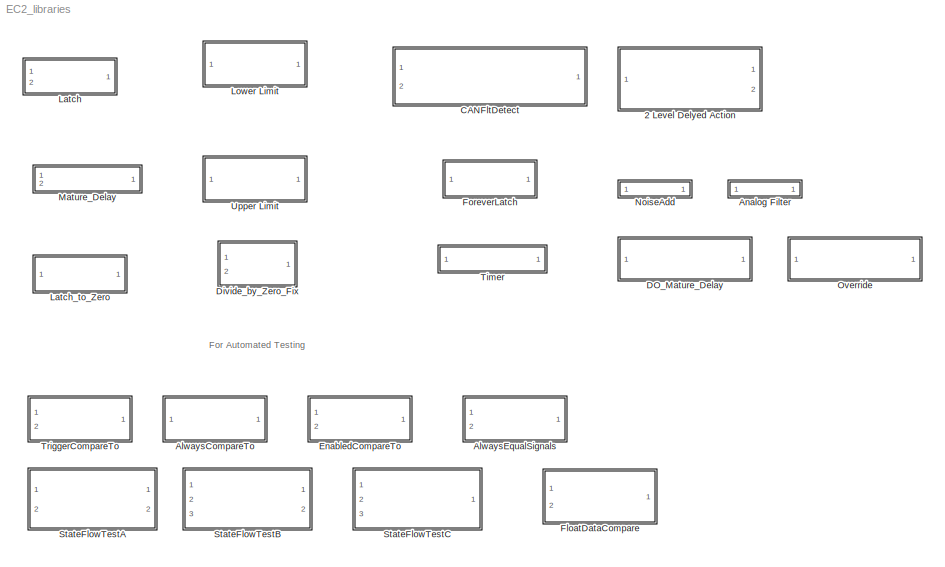
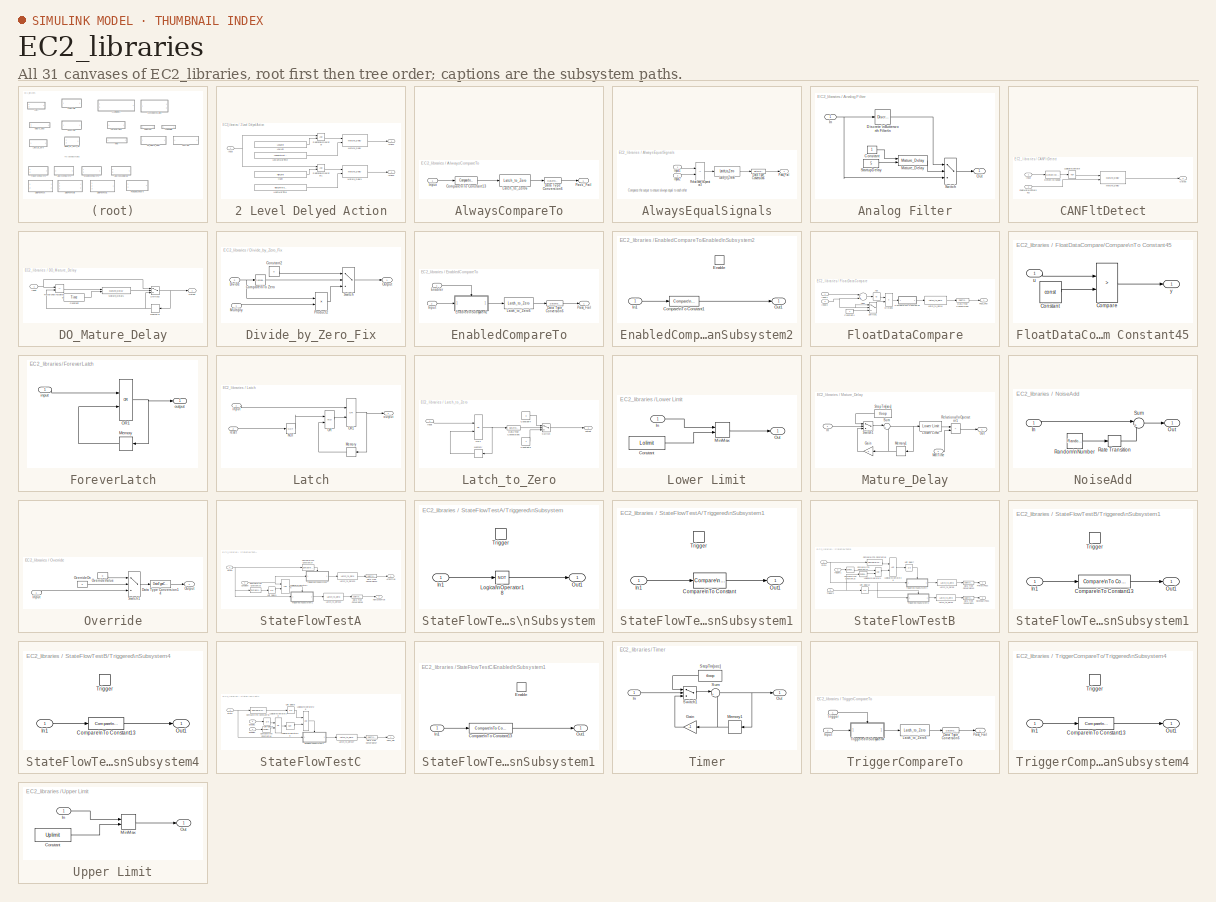
[diagram: thumbnail index - all 31 canvases of the model, root first then tree order]
MODEL EC2_libraries
KIND library
CONFIG PostLoadFcn = , if any(exist('dsrtsu_mdlpostloadfcn', 'file') == [2, 3, 6]), try dsrtsu_mdlpostloadfcn('Execute', bdroot); catch fprintf('Error in PostLoadFcn (dsrtsu_mdlpostloadfcn) for model \"%s\":\\n %s\\n', bdroot, lasterr); end, end, \n
BLOCK [SubSystem] 2 Level Delyed Action
  Ports = [1, 2]
  RequestExecContextInheritance = off
  SID = 229
  Variant = off
BLOCK [Outport] 2 Level Delyed Action/Action1
  IconDisplay = Port number
  SID = 239
BLOCK [Outport] 2 Level Delyed Action/Action2
  IconDisplay = Port number
  Port = 2
  SID = 240
BLOCK [Constant] 2 Level Delyed Action/HiLim
  SID = 233
  Value = HighLimit
BLOCK [Constant] 2 Level Delyed Action/HiLimMatTime
  SID = 232
  Value = HighLimitMatureTime
BLOCK [Inport] 2 Level Delyed Action/Input
  IconDisplay = Port number
  SID = 230
BLOCK [Constant] 2 Level Delyed Action/LowLim
  SID = 231
  Value = LowLimit
BLOCK [Constant] 2 Level Delyed Action/LowLimMatTime
  SID = 234
  Value = LowLimitMatureTime
BLOCK [Reference] 2 Level Delyed Action/Mature_Delay  REF=EC2_libraries/Mature_Delay
  Ports = [2, 1]
  SID = 235
  SourceBlock = EC2_libraries/Mature_Delay
  SourceType = SubSystem
BLOCK [Reference] 2 Level Delyed Action/Mature_Delay1  REF=EC2_libraries/Mature_Delay
  Ports = [2, 1]
  SID = 236
  SourceBlock = EC2_libraries/Mature_Delay
  SourceType = SubSystem
BLOCK [RelationalOperator] 2 Level Delyed Action/Relational\nOperator
  InputSameDT = off
  OutDataTypeStr = boolean
  Ports = [2, 1]
  SID = 237
BLOCK [RelationalOperator] 2 Level Delyed Action/Relational\nOperator1
  InputSameDT = off
  OutDataTypeStr = boolean
  Ports = [2, 1]
  SID = 238
BLOCK [SubSystem] AlwaysCompareTo
  Ports = [1, 1]
  RequestExecContextInheritance = off
  SID = 182
  TreatAsAtomicUnit = on
  Variant = off
BLOCK [Reference] AlwaysCompareTo/Compare\nTo Constant13  REF=simulink/Logic and Bit\nOperations/Compare\nTo Constant
  OutDataTypeStr = boolean
  Ports = [1, 1]
  SID = 198
  SourceBlock = simulink/Logic and Bit\nOperations/Compare\nTo Constant
  SourceProductBaseCode = SL
  SourceProductName = Simulink
  SourceType = Compare To Constant
  ZeroCross = on
  const = exp_val
  relop = ~=
BLOCK [DataTypeConversion] AlwaysCompareTo/Data Type Conversion6
  RndMeth = Floor
  SID = 185
  SaturateOnIntegerOverflow = off
BLOCK [Inport] AlwaysCompareTo/Input
  IconDisplay = Port number
  SID = 184
BLOCK [Reference] AlwaysCompareTo/Latch_to_Zero6  REF=EC2_libraries/Latch_to_Zero
  Ports = [1, 1]
  SID = 186
  SourceBlock = EC2_libraries/Latch_to_Zero
  SourceType = SubSystem
BLOCK [Outport] AlwaysCompareTo/Pass_Fail
  IconDisplay = Port number
  SID = 192
BLOCK [SubSystem] AlwaysEqualSignals
  Ports = [2, 1]
  RequestExecContextInheritance = off
  SID = 170
  TreatAsAtomicUnit = on
  Variant = off
BLOCK [DataTypeConversion] AlwaysEqualSignals/Data Type Conversion6
  RndMeth = Floor
  SID = 173
  SaturateOnIntegerOverflow = off
BLOCK [Inport] AlwaysEqualSignals/Input1
  IconDisplay = Port number
  SID = 171
BLOCK [Inport] AlwaysEqualSignals/Input2
  IconDisplay = Port number
  Port = 2
  SID = 172
BLOCK [Reference] AlwaysEqualSignals/Latch_to_Zero6  REF=EC2_libraries/Latch_to_Zero
  Ports = [1, 1]
  SID = 174
  SourceBlock = EC2_libraries/Latch_to_Zero
  SourceType = SubSystem
BLOCK [Outport] AlwaysEqualSignals/Pass_Fail
  IconDisplay = Port number
  SID = 180
BLOCK [RelationalOperator] AlwaysEqualSignals/Relational\nOperator3
  InputSameDT = off
  Operator = ~=
  OutDataTypeStr = boolean
  Ports = [2, 1]
  SID = 181
BLOCK [SubSystem] Analog Filter
  Ports = [1, 1]
  RequestExecContextInheritance = off
  SID = 425
  Variant = off
BLOCK [Constant] Analog Filter/Constant
  SID = 433
BLOCK [Reference] Analog Filter/Discrete \nButterworth Filter\n  REF=powerlib_extras/Discrete \nControl Blocks/Discrete \nButterworth Filter\n
  Bo = 80
  FilterType = Lowpass
  Fo = 2
  FunctionWithSeparateData = off
  Initialize = on
  N = 1
  PlotResponse = off
  Ports = [1, 1]
  RTWMemSecDataConstants = Inherit from model
  RTWMemSecDataInternal = Inherit from model
  RTWMemSecDataParameters = Inherit from model
  RTWMemSecFuncExecute = Inherit from model
  RTWMemSecFuncInitTerm = Inherit from model
  SID = 430
  ShowPortLabels = FromPortIcon
  SourceBlock = powerlib_extras/Discrete \nControl Blocks/Discrete \nButterworth Filter\n
  SourceType = Discrete Butterworth Filter
  SystemSampleTime = -1
  Ts = tloop
  Vac_Init = [1.2 60 60]
  Vdc_Init = -0.6
  param1 = [1 500 0.1]
BLOCK [Inport] Analog Filter/In
  IconDisplay = Port number
  SID = 426
BLOCK [Reference] Analog Filter/Mature_Delay  REF=EC2_libraries/Mature_Delay
  Ports = [2, 1]
  SID = 431
  SourceBlock = EC2_libraries/Mature_Delay
  SourceType = SubSystem
BLOCK [Outport] Analog Filter/Out
  IconDisplay = Port number
  SID = 429
BLOCK [Constant] Analog Filter/StartupDelay
  SID = 432
  Value = 5
BLOCK [Switch] Analog Filter/Switch
  InputSameDT = off
  SID = 434
  SaturateOnIntegerOverflow = off
  Threshold = 1
BLOCK [SubSystem] CANFltDetect
  Ports = [2, 1]
  RequestExecContextInheritance = off
  SID = 42
  Variant = off
BLOCK [Reference] CANFltDetect/Detect\nChange  REF=simulink/Logic and Bit\nOperations/Detect\nChange
  InputProcessing = Inherited
  OutDataTypeStr = uint8
  Ports = [1, 1]
  SID = 54
  SourceBlock = simulink/Logic and Bit\nOperations/Detect\nChange
  SourceProductBaseCode = SL
  SourceProductName = Simulink
  SourceType = Detect Change
  vinit = 1
BLOCK [Inport] CANFltDetect/FaultMatureTime[sec]
  IconDisplay = Port number
  Port = 2
  SID = 44
BLOCK [Inport] CANFltDetect/Input
  IconDisplay = Port number
  SID = 43
BLOCK [Logic] CANFltDetect/Logical\nOperator
  AllPortsSameDT = off
  Inputs = 1
  Operator = NOT
  OutDataTypeStr = boolean
  Ports = [1, 1]
  SID = 55
BLOCK [Reference] CANFltDetect/Mature_Delay  REF=EC2_libraries/Mature_Delay
  Ports = [2, 1]
  SID = 56
  SourceBlock = EC2_libraries/Mature_Delay
  SourceType = SubSystem
BLOCK [Outport] CANFltDetect/Output
  IconDisplay = Port number
  SID = 53
BLOCK [SubSystem] DO_Mature_Delay
  Ports = [1, 1]
  RequestExecContextInheritance = off
  SID = 416
  Variant = off
BLOCK [Constant] DO_Mature_Delay/Constant
  SID = 424
  Value = Time
BLOCK [Inport] DO_Mature_Delay/Input
  IconDisplay = Port number
  SID = 417
BLOCK [Reference] DO_Mature_Delay/Mature_Delay1  REF=EC2_libraries/Mature_Delay
  Ports = [2, 1]
  SID = 419
  SourceBlock = EC2_libraries/Mature_Delay
  SourceType = SubSystem
BLOCK [Memory] DO_Mature_Delay/Memory3
  SID = 420
BLOCK [Outport] DO_Mature_Delay/Output
  IconDisplay = Port number
  SID = 423
BLOCK [RelationalOperator] DO_Mature_Delay/Relational\nOperator
  InputSameDT = off
  Operator = ~=
  OutDataTypeStr = boolean
  Ports = [2, 1]
  SID = 421
BLOCK [Switch] DO_Mature_Delay/Switch2
  InputSameDT = off
  SID = 422
  SaturateOnIntegerOverflow = off
  Threshold = 1
BLOCK [SubSystem] Divide_by_Zero_Fix
  Ports = [2, 1]
  RequestExecContextInheritance = off
  SID = 71
  Variant = off
BLOCK [Reference] Divide_by_Zero_Fix/Compare\nTo Zero  REF=simulink/Logic and Bit\nOperations/Compare\nTo Zero
  OutDataTypeStr = boolean
  Ports = [1, 1]
  SID = 74
  SourceBlock = simulink/Logic and Bit\nOperations/Compare\nTo Zero
  SourceProductBaseCode = SL
  SourceProductName = Simulink
  SourceType = Compare To Zero
  ZeroCross = on
  relop = ==
BLOCK [Constant] Divide_by_Zero_Fix/Constant2
  SID = 75
  Value = 0
BLOCK [Inport] Divide_by_Zero_Fix/Divide
  IconDisplay = Port number
  Port = 2
  SID = 73
BLOCK [Inport] Divide_by_Zero_Fix/Multiply
  IconDisplay = Port number
  SID = 72
BLOCK [Outport] Divide_by_Zero_Fix/Output
  IconDisplay = Port number
  SID = 78
BLOCK [Product] Divide_by_Zero_Fix/Product2
  Inputs = /*
  Ports = [2, 1]
  RndMeth = Floor
  SID = 76
BLOCK [Switch] Divide_by_Zero_Fix/Switch
  InputSameDT = off
  SID = 77
  SaturateOnIntegerOverflow = off
  Threshold = 1
BLOCK [SubSystem] EnabledCompareTo
  Ports = [2, 1]
  RequestExecContextInheritance = off
  SID = 210
  TreatAsAtomicUnit = on
  Variant = off
BLOCK [DataTypeConversion] EnabledCompareTo/Data Type Conversion6
  RndMeth = Floor
  SID = 213
  SaturateOnIntegerOverflow = off
BLOCK [SubSystem] EnabledCompareTo/Enabled\nSubsystem2
  Ports = [1, 1, 1]
  RequestExecContextInheritance = off
  SID = 221
  TreatAsAtomicUnit = on
  Variant = off
BLOCK [Reference] EnabledCompareTo/Enabled\nSubsystem2/Compare\nTo Constant1  REF=simulink/Logic and Bit\nOperations/Compare\nTo Constant
  OutDataTypeStr = boolean
  Ports = [1, 1]
  SID = 228
  SourceBlock = simulink/Logic and Bit\nOperations/Compare\nTo Constant
  SourceProductBaseCode = SL
  SourceProductName = Simulink
  SourceType = Compare To Constant
  ZeroCross = on
  const = exp_val
  relop = ~=
BLOCK [EnablePort] EnabledCompareTo/Enabled\nSubsystem2/Enable
  Ports = []
  SID = 223
BLOCK [Inport] EnabledCompareTo/Enabled\nSubsystem2/In1
  IconDisplay = Port number
  SID = 222
BLOCK [Outport] EnabledCompareTo/Enabled\nSubsystem2/Out1
  IconDisplay = Port number
  SID = 225
BLOCK [Inport] EnabledCompareTo/Enabler
  IconDisplay = Port number
  SID = 211
BLOCK [Inport] EnabledCompareTo/Input
  IconDisplay = Port number
  Port = 2
  SID = 212
BLOCK [Reference] EnabledCompareTo/Latch_to_Zero6  REF=EC2_libraries/Latch_to_Zero
  Ports = [1, 1]
  SID = 214
  SourceBlock = EC2_libraries/Latch_to_Zero
  SourceType = SubSystem
BLOCK [Outport] EnabledCompareTo/Pass_Fail
  IconDisplay = Port number
  SID = 220
BLOCK [SubSystem] FloatDataCompare
  Ports = [2, 1]
  RequestExecContextInheritance = off
  SID = 399
  Variant = off
BLOCK [Abs] FloatDataCompare/Abs
  SID = 402
  SaturateOnIntegerOverflow = off
BLOCK [Sum] FloatDataCompare/Add1
  InputSameDT = off
  Inputs = -+
  OutDataTypeStr = Inherit: Inherit via internal rule
  Ports = [2, 1]
  SID = 403
  SaturateOnIntegerOverflow = off
BLOCK [SubSystem] FloatDataCompare/Compare\nTo Constant45
  Ports = [1, 1]
  RequestExecContextInheritance = off
  SID = 404
  Variant = off
BLOCK [RelationalOperator] FloatDataCompare/Compare\nTo Constant45/Compare
  Operator = >
  OutDataTypeStr = boolean
  Ports = [2, 1]
  SID = 404:24
BLOCK [Constant] FloatDataCompare/Compare\nTo Constant45/Constant
  DisableCoverage = on
  OutDataTypeStr = Inherit: Inherit via back propagation
  SID = 404:25
  Value = const
BLOCK [Inport] FloatDataCompare/Compare\nTo Constant45/u
  IconDisplay = Port number
  SID = 404:23
BLOCK [Outport] FloatDataCompare/Compare\nTo Constant45/y
  IconDisplay = Port number
  SID = 404:26
BLOCK [Constant] FloatDataCompare/Constant4
  SID = 405
BLOCK [DataTypeConversion] FloatDataCompare/Data Type Conversion5
  RndMeth = Floor
  SID = 406
  SaturateOnIntegerOverflow = off
BLOCK [Product] FloatDataCompare/Divide3
  InputSameDT = off
  Inputs = */
  OutDataTypeStr = Inherit: Inherit via internal rule
  Ports = [2, 1]
  RndMeth = Floor
  SID = 407
  SaturateOnIntegerOverflow = off
BLOCK [Inport] FloatDataCompare/Input1
  IconDisplay = Port number
  SID = 400
BLOCK [Inport] FloatDataCompare/Input2
  IconDisplay = Port number
  Port = 2
  SID = 401
BLOCK [Reference] FloatDataCompare/Latch_to_Zero4  REF=EC2_libraries/Latch_to_Zero
  Ports = [1, 1]
  SID = 408
  SourceBlock = EC2_libraries/Latch_to_Zero
  SourceType = SubSystem
BLOCK [Outport] FloatDataCompare/Pass_Fail
  IconDisplay = Port number
  SID = 410
BLOCK [Switch] FloatDataCompare/Switch1
  Criteria = u2 > Threshold
  InputSameDT = off
  SID = 409
  SaturateOnIntegerOverflow = off
BLOCK [SubSystem] ForeverLatch
  Ports = [1, 1]
  RequestExecContextInheritance = off
  SID = 57
  Variant = off
BLOCK [Memory] ForeverLatch/Memory
  SID = 59
BLOCK [Logic] ForeverLatch/OR1
  Operator = OR
  OutDataTypeStr = boolean
  Ports = [2, 1]
  SID = 60
BLOCK [Inport] ForeverLatch/input
  IconDisplay = Port number
  OutDataTypeStr = boolean
  SID = 58
BLOCK [Outport] ForeverLatch/output
  IconDisplay = Port number
  OutDataTypeStr = boolean
  SID = 61
BLOCK [SubSystem] Latch
  Ports = [2, 1]
  RequestExecContextInheritance = off
  SID = 34
  Variant = off
BLOCK [Memory] Latch/Memory
  SID = 37
BLOCK [Logic] Latch/NOT
  Operator = NOT
  OutDataTypeStr = boolean
  Ports = [1, 1]
  SID = 38
BLOCK [Logic] Latch/OR
  OutDataTypeStr = boolean
  Ports = [2, 1]
  SID = 39
BLOCK [Logic] Latch/OR1
  Operator = OR
  OutDataTypeStr = boolean
  Ports = [2, 1]
  SID = 40
BLOCK [Inport] Latch/input
  IconDisplay = Port number
  OutDataTypeStr = boolean
  SID = 35
BLOCK [Outport] Latch/output
  IconDisplay = Port number
  OutDataTypeStr = boolean
  SID = 41
BLOCK [Inport] Latch/reset
  IconDisplay = Port number
  OutDataTypeStr = boolean
  Port = 2
  SID = 36
BLOCK [SubSystem] Latch_to_Zero
  Ports = [1, 1]
  RequestExecContextInheritance = off
  SID = 62
  Variant = off
BLOCK [Constant] Latch_to_Zero/Constant3
  SID = 64
BLOCK [Constant] Latch_to_Zero/Constant4
  SID = 65
  Value = 0
BLOCK [DataTypeConversion] Latch_to_Zero/Data Type Conversion6
  RndMeth = Floor
  SID = 70
  SaturateOnIntegerOverflow = off
BLOCK [Memory] Latch_to_Zero/Memory
  SID = 66
BLOCK [Logic] Latch_to_Zero/OR1
  Operator = OR
  OutDataTypeStr = boolean
  Ports = [2, 1]
  SID = 67
BLOCK [Switch] Latch_to_Zero/Switch
  Criteria = u2 > Threshold
  InputSameDT = off
  SID = 68
  SaturateOnIntegerOverflow = off
BLOCK [Inport] Latch_to_Zero/input
  IconDisplay = Port number
  OutDataTypeStr = boolean
  SID = 63
BLOCK [Outport] Latch_to_Zero/output
  IconDisplay = Port number
  SID = 69
BLOCK [SubSystem] Lower Limit
  Ports = [1, 1]
  RequestExecContextInheritance = off
  SID = 1
  Variant = off
BLOCK [Constant] Lower Limit/Constant
  SID = 3
  Value = Lolimit
BLOCK [Inport] Lower Limit/In
  IconDisplay = Port number
  SID = 2
BLOCK [MinMax] Lower Limit/MinMax
  Function = max
  InputSameDT = off
  Inputs = 2
  Ports = [2, 1]
  SID = 4
  SaturateOnIntegerOverflow = off
BLOCK [Outport] Lower Limit/Out
  IconDisplay = Port number
  SID = 5
BLOCK [SubSystem] Mature_Delay
  Ports = [2, 1]
  RequestExecContextInheritance = off
  SID = 21
  Variant = off
BLOCK [Gain] Mature_Delay/Gain
  Gain = -1
  OutDataTypeStr = Inherit: Inherit via internal rule
  ParamDataTypeStr = Inherit: Inherit via internal rule
  SID = 24
  SaturateOnIntegerOverflow = off
BLOCK [Inport] Mature_Delay/In
  IconDisplay = Port number
  SID = 22
BLOCK [Reference] Mature_Delay/Lower Limit  REF=EC2_libraries/Lower Limit
  Lolimit = 0.001
  Ports = [1, 1]
  SID = 33
  SourceBlock = EC2_libraries/Lower Limit
BLOCK [Inport] Mature_Delay/MatTime
  IconDisplay = Port number
  Port = 2
  SID = 32
BLOCK [Memory] Mature_Delay/Memory1
  SID = 26
BLOCK [Outport] Mature_Delay/Out
  IconDisplay = Port number
  SID = 31
BLOCK [RelationalOperator] Mature_Delay/Relational\nOperator1
  InputSameDT = off
  Operator = >
  OutDataTypeStr = boolean
  Ports = [2, 1]
  SID = 27
BLOCK [Constant] Mature_Delay/StepTm[sec]
  SID = 28
  Value = tloop
BLOCK [Sum] Mature_Delay/Sum
  IconShape = round
  InputSameDT = off
  Inputs = |++
  OutDataTypeStr = Inherit: Inherit via internal rule
  Ports = [2, 1]
  SID = 29
  SaturateOnIntegerOverflow = off
BLOCK [Switch] Mature_Delay/Switch1
  InputSameDT = off
  SID = 30
  SaturateOnIntegerOverflow = off
  Threshold = 1
BLOCK [SubSystem] NoiseAdd
  Ports = [1, 1]
  RequestExecContextInheritance = off
  SID = 411
  Variant = off
BLOCK [Inport] NoiseAdd/In
  IconDisplay = Port number
  SID = 412
BLOCK [Outport] NoiseAdd/Out
  IconDisplay = Port number
  SID = 415
BLOCK [RandomNumber] NoiseAdd/Random\nNumber
  SID = 413
  SampleTime = tloop
  Seed = seed
  Variance = variance
BLOCK [RateTransition] NoiseAdd/Rate Transition
  SID = 457
BLOCK [Sum] NoiseAdd/Sum
  IconShape = round
  InputSameDT = off
  Inputs = |++
  OutDataTypeStr = Inherit: Inherit via internal rule
  Ports = [2, 1]
  SID = 414
  SaturateOnIntegerOverflow = off
BLOCK [SubSystem] Override
  Ports = [1, 1]
  RequestExecContextInheritance = off
  SID = 435
  Variant = off
BLOCK [DataTypeConversion] Override/Data Type Conversion14
  RndMeth = Floor
  SID = 437
  SaturateOnIntegerOverflow = off
BLOCK [Inport] Override/Input
  IconDisplay = Port number
  SID = 436
BLOCK [Outport] Override/Output
  IconDisplay = Port number
  SID = 441
BLOCK [Constant] Override/OverrideOn
  SID = 438
  Value = 0
BLOCK [Constant] Override/OverrideValue
  SID = 439
  Value = 0
BLOCK [Switch] Override/Switch1
  InputSameDT = off
  SID = 440
  SaturateOnIntegerOverflow = off
  Threshold = 1
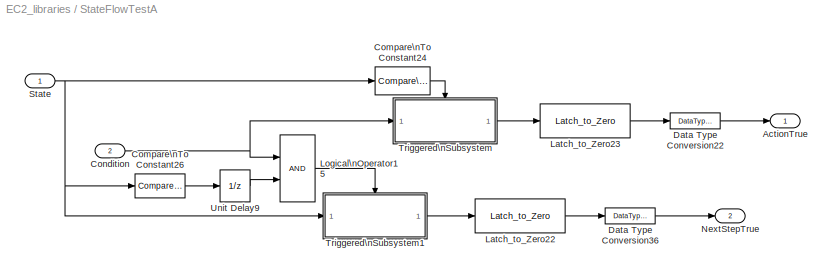
BLOCK [SubSystem] StateFlowTestA
  Ports = [2, 2]
  RequestExecContextInheritance = off
  SID = 98
  TreatAsAtomicUnit = on
  Variant = off
BLOCK [Outport] StateFlowTestA/ActionTrue
  IconDisplay = Port number
  SID = 364
BLOCK [Reference] StateFlowTestA/Compare\nTo Constant24  REF=simulink/Logic and Bit\nOperations/Compare\nTo Constant
  OutDataTypeStr = uint8
  Ports = [1, 1]
  SID = 354
  SourceBlock = simulink/Logic and Bit\nOperations/Compare\nTo Constant
  SourceProductBaseCode = SL
  SourceProductName = Simulink
  SourceType = Compare To Constant
  ZeroCross = on
  const = State+1
  relop = ==
BLOCK [Reference] StateFlowTestA/Compare\nTo Constant26  REF=simulink/Logic and Bit\nOperations/Compare\nTo Constant
  OutDataTypeStr = uint8
  Ports = [1, 1]
  SID = 355
  SourceBlock = simulink/Logic and Bit\nOperations/Compare\nTo Constant
  SourceProductBaseCode = SL
  SourceProductName = Simulink
  SourceType = Compare To Constant
  ZeroCross = on
  const = State
  relop = ==
BLOCK [Inport] StateFlowTestA/Condition
  IconDisplay = Port number
  Port = 2
  SID = 353
BLOCK [DataTypeConversion] StateFlowTestA/Data Type Conversion22
  RndMeth = Floor
  SID = 356
  SaturateOnIntegerOverflow = off
BLOCK [DataTypeConversion] StateFlowTestA/Data Type Conversion36
  RndMeth = Floor
  SID = 357
  SaturateOnIntegerOverflow = off
BLOCK [Reference] StateFlowTestA/Latch_to_Zero22  REF=EC2_libraries/Latch_to_Zero
  Ports = [1, 1]
  SID = 358
  SourceBlock = EC2_libraries/Latch_to_Zero
  SourceType = SubSystem
BLOCK [Reference] StateFlowTestA/Latch_to_Zero23  REF=EC2_libraries/Latch_to_Zero
  Ports = [1, 1]
  SID = 359
  SourceBlock = EC2_libraries/Latch_to_Zero
  SourceType = SubSystem
BLOCK [Logic] StateFlowTestA/Logical\nOperator15
  AllPortsSameDT = off
  OutDataTypeStr = boolean
  Ports = [2, 1]
  SID = 360
BLOCK [Outport] StateFlowTestA/NextStepTrue
  IconDisplay = Port number
  Port = 2
  SID = 365
BLOCK [Inport] StateFlowTestA/State
  IconDisplay = Port number
  SID = 352
BLOCK [SubSystem] StateFlowTestA/Triggered\nSubsystem
  Ports = [1, 1, 0, 1]
  RequestExecContextInheritance = off
  SID = 366
  TreatAsAtomicUnit = on
  Variant = off
BLOCK [Inport] StateFlowTestA/Triggered\nSubsystem/In1
  IconDisplay = Port number
  SID = 367
BLOCK [Logic] StateFlowTestA/Triggered\nSubsystem/Logical\nOperator18
  AllPortsSameDT = off
  Operator = NOT
  OutDataTypeStr = boolean
  Ports = [1, 1]
  SID = 370
BLOCK [Outport] StateFlowTestA/Triggered\nSubsystem/Out1
  IconDisplay = Port number
  SID = 369
BLOCK [TriggerPort] StateFlowTestA/Triggered\nSubsystem/Trigger
  Ports = []
  SID = 368
  StatesWhenEnabling = held
  VariantControl = (inherit)
BLOCK [SubSystem] StateFlowTestA/Triggered\nSubsystem1
  Ports = [1, 1, 0, 1]
  RequestExecContextInheritance = off
  SID = 373
  TreatAsAtomicUnit = on
  Variant = off
BLOCK [Reference] StateFlowTestA/Triggered\nSubsystem1/Compare\nTo Constant  REF=simulink/Logic and Bit\nOperations/Compare\nTo Constant
  OutDataTypeStr = boolean
  Ports = [1, 1]
  SID = 378
  SourceBlock = simulink/Logic and Bit\nOperations/Compare\nTo Constant
  SourceProductBaseCode = SL
  SourceProductName = Simulink
  SourceType = Compare To Constant
  ZeroCross = on
  const = State+1
  relop = ~=
BLOCK [Inport] StateFlowTestA/Triggered\nSubsystem1/In1
  IconDisplay = Port number
  SID = 374
BLOCK [Outport] StateFlowTestA/Triggered\nSubsystem1/Out1
  IconDisplay = Port number
  SID = 376
BLOCK [TriggerPort] StateFlowTestA/Triggered\nSubsystem1/Trigger
  Ports = []
  SID = 375
  StatesWhenEnabling = held
  VariantControl = (inherit)
BLOCK [UnitDelay] StateFlowTestA/Unit Delay9
  SID = 363
  SampleTime = -1
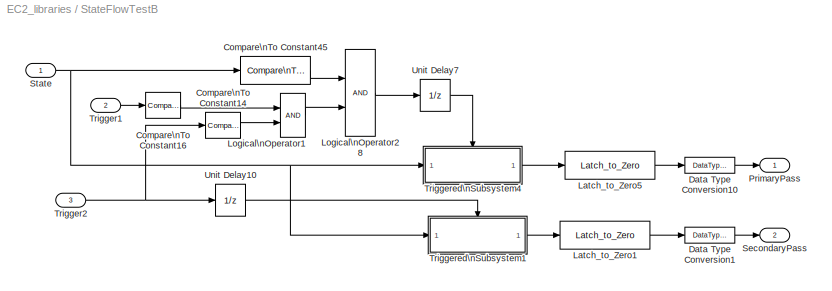
BLOCK [SubSystem] StateFlowTestB
  Ports = [3, 2]
  RequestExecContextInheritance = off
  SID = 121
  TreatAsAtomicUnit = on
  Variant = off
BLOCK [Reference] StateFlowTestB/Compare\nTo Constant14  REF=simulink/Logic and Bit\nOperations/Compare\nTo Constant
  OutDataTypeStr = uint8
  Ports = [1, 1]
  SID = 145
  SourceBlock = simulink/Logic and Bit\nOperations/Compare\nTo Constant
  SourceProductBaseCode = SL
  SourceProductName = Simulink
  SourceType = Compare To Constant
  ZeroCross = on
  const = 0
  relop = ==
BLOCK [Reference] StateFlowTestB/Compare\nTo Constant16  REF=simulink/Logic and Bit\nOperations/Compare\nTo Constant
  OutDataTypeStr = uint8
  Ports = [1, 1]
  SID = 146
  SourceBlock = simulink/Logic and Bit\nOperations/Compare\nTo Constant
  SourceProductBaseCode = SL
  SourceProductName = Simulink
  SourceType = Compare To Constant
  ZeroCross = on
  const = 0
  relop = ==
BLOCK [Reference] StateFlowTestB/Compare\nTo Constant45  REF=simulink/Logic and Bit\nOperations/Compare\nTo Constant
  OutDataTypeStr = uint8
  Ports = [1, 1]
  SID = 147
  SourceBlock = simulink/Logic and Bit\nOperations/Compare\nTo Constant
  SourceProductBaseCode = SL
  SourceProductName = Simulink
  SourceType = Compare To Constant
  ZeroCross = on
  const = StateBase
  relop = ==
BLOCK [DataTypeConversion] StateFlowTestB/Data Type Conversion1
  RndMeth = Floor
  SID = 169
  SaturateOnIntegerOverflow = off
BLOCK [DataTypeConversion] StateFlowTestB/Data Type Conversion10
  RndMeth = Floor
  SID = 168
  SaturateOnIntegerOverflow = off
BLOCK [Reference] StateFlowTestB/Latch_to_Zero1  REF=EC2_libraries/Latch_to_Zero
  Ports = [1, 1]
  SID = 152
  SourceBlock = EC2_libraries/Latch_to_Zero
  SourceType = SubSystem
BLOCK [Reference] StateFlowTestB/Latch_to_Zero5  REF=EC2_libraries/Latch_to_Zero
  Ports = [1, 1]
  SID = 153
  SourceBlock = EC2_libraries/Latch_to_Zero
  SourceType = SubSystem
BLOCK [Logic] StateFlowTestB/Logical\nOperator1
  AllPortsSameDT = off
  OutDataTypeStr = boolean
  Ports = [2, 1]
  SID = 167
BLOCK [Logic] StateFlowTestB/Logical\nOperator28
  AllPortsSameDT = off
  OutDataTypeStr = boolean
  Ports = [2, 1]
  SID = 154
BLOCK [Outport] StateFlowTestB/PrimaryPass
  IconDisplay = Port number
  SID = 142
BLOCK [Outport] StateFlowTestB/SecondaryPass
  IconDisplay = Port number
  Port = 2
  SID = 143
BLOCK [Inport] StateFlowTestB/State
  IconDisplay = Port number
  SID = 122
BLOCK [Inport] StateFlowTestB/Trigger1
  IconDisplay = Port number
  Port = 2
  SID = 123
BLOCK [Inport] StateFlowTestB/Trigger2
  IconDisplay = Port number
  Port = 3
  SID = 144
BLOCK [SubSystem] StateFlowTestB/Triggered\nSubsystem1
  Ports = [1, 1, 0, 1]
  RequestExecContextInheritance = off
  SID = 155
  TreatAsAtomicUnit = on
  Variant = off
BLOCK [Reference] StateFlowTestB/Triggered\nSubsystem1/Compare\nTo Constant13  REF=simulink/Logic and Bit\nOperations/Compare\nTo Constant
  OutDataTypeStr = boolean
  Ports = [1, 1]
  SID = 158
  SourceBlock = simulink/Logic and Bit\nOperations/Compare\nTo Constant
  SourceProductBaseCode = SL
  SourceProductName = Simulink
  SourceType = Compare To Constant
  ZeroCross = on
  const = SecondaryState
  relop = ~=
BLOCK [Inport] StateFlowTestB/Triggered\nSubsystem1/In1
  IconDisplay = Port number
  SID = 156
BLOCK [Outport] StateFlowTestB/Triggered\nSubsystem1/Out1
  IconDisplay = Port number
  SID = 159
BLOCK [TriggerPort] StateFlowTestB/Triggered\nSubsystem1/Trigger
  Ports = []
  SID = 157
  StatesWhenEnabling = held
  VariantControl = (inherit)
BLOCK [SubSystem] StateFlowTestB/Triggered\nSubsystem4
  Ports = [1, 1, 0, 1]
  RequestExecContextInheritance = off
  SID = 160
  TreatAsAtomicUnit = on
  Variant = off
BLOCK [Reference] StateFlowTestB/Triggered\nSubsystem4/Compare\nTo Constant13  REF=simulink/Logic and Bit\nOperations/Compare\nTo Constant
  OutDataTypeStr = boolean
  Ports = [1, 1]
  SID = 163
  SourceBlock = simulink/Logic and Bit\nOperations/Compare\nTo Constant
  SourceProductBaseCode = SL
  SourceProductName = Simulink
  SourceType = Compare To Constant
  ZeroCross = on
  const = PrimaryState
  relop = ~=
BLOCK [Inport] StateFlowTestB/Triggered\nSubsystem4/In1
  IconDisplay = Port number
  SID = 161
BLOCK [Outport] StateFlowTestB/Triggered\nSubsystem4/Out1
  IconDisplay = Port number
  SID = 164
BLOCK [TriggerPort] StateFlowTestB/Triggered\nSubsystem4/Trigger
  Ports = []
  SID = 162
  StatesWhenEnabling = held
  VariantControl = (inherit)
BLOCK [UnitDelay] StateFlowTestB/Unit Delay10
  SID = 165
  SampleTime = -1
BLOCK [UnitDelay] StateFlowTestB/Unit Delay7
  SID = 166
  SampleTime = -1
BLOCK [SubSystem] StateFlowTestC
  Ports = [3, 1]
  RequestExecContextInheritance = off
  SID = 256
  TreatAsAtomicUnit = on
  Variant = off
BLOCK [Reference] StateFlowTestC/Compare\nTo Constant18  REF=simulink/Logic and Bit\nOperations/Compare\nTo Constant
  OutDataTypeStr = uint8
  Ports = [1, 1]
  SID = 292
  SourceBlock = simulink/Logic and Bit\nOperations/Compare\nTo Constant
  SourceProductBaseCode = SL
  SourceProductName = Simulink
  SourceType = Compare To Constant
  ZeroCross = on
  const = 0
  relop = ==
BLOCK [Reference] StateFlowTestC/Compare\nTo Constant45  REF=simulink/Logic and Bit\nOperations/Compare\nTo Constant
  OutDataTypeStr = uint8
  Ports = [1, 1]
  SID = 293
  SourceBlock = simulink/Logic and Bit\nOperations/Compare\nTo Constant
  SourceProductBaseCode = SL
  SourceProductName = Simulink
  SourceType = Compare To Constant
  ZeroCross = on
  const = StateBase
  relop = ==
BLOCK [DataTypeConversion] StateFlowTestC/Data Type Conversion37
  RndMeth = Floor
  SID = 294
  SaturateOnIntegerOverflow = off
BLOCK [Inport] StateFlowTestC/Enable1
  IconDisplay = Port number
  Port = 2
  SID = 290
BLOCK [Inport] StateFlowTestC/Enable2
  IconDisplay = Port number
  Port = 3
  SID = 291
BLOCK [SubSystem] StateFlowTestC/Enabled\nSubsystem1
  Ports = [1, 1, 1]
  RequestExecContextInheritance = off
  SID = 295
  TreatAsAtomicUnit = on
  Variant = off
BLOCK [Reference] StateFlowTestC/Enabled\nSubsystem1/Compare\nTo Constant13  REF=simulink/Logic and Bit\nOperations/Compare\nTo Constant
  OutDataTypeStr = boolean
  Ports = [1, 1]
  SID = 298
  SourceBlock = simulink/Logic and Bit\nOperations/Compare\nTo Constant
  SourceProductBaseCode = SL
  SourceProductName = Simulink
  SourceType = Compare To Constant
  ZeroCross = on
  const = State
  relop = ~=
BLOCK [EnablePort] StateFlowTestC/Enabled\nSubsystem1/Enable
  Ports = []
  SID = 297
BLOCK [Inport] StateFlowTestC/Enabled\nSubsystem1/In1
  IconDisplay = Port number
  SID = 296
BLOCK [Outport] StateFlowTestC/Enabled\nSubsystem1/Out1
  IconDisplay = Port number
  SID = 299
BLOCK [Reference] StateFlowTestC/Latch_to_Zero27  REF=EC2_libraries/Latch_to_Zero
  Ports = [1, 1]
  SID = 300
  SourceBlock = EC2_libraries/Latch_to_Zero
  SourceType = SubSystem
BLOCK [Logic] StateFlowTestC/Logical\nOperator26
  AllPortsSameDT = off
  OutDataTypeStr = boolean
  Ports = [2, 1]
  SID = 301
BLOCK [Logic] StateFlowTestC/Logical\nOperator29
  AllPortsSameDT = off
  Operator = NOT
  OutDataTypeStr = boolean
  Ports = [1, 1]
  SID = 302
BLOCK [Logic] StateFlowTestC/Logical\nOperator30
  AllPortsSameDT = off
  Operator = OR
  OutDataTypeStr = boolean
  Ports = [2, 1]
  SID = 303
BLOCK [Outport] StateFlowTestC/Pass_Fail
  IconDisplay = Port number
  SID = 306
BLOCK [Inport] StateFlowTestC/State
  IconDisplay = Port number
  SID = 289
BLOCK [UnitDelay] StateFlowTestC/Unit Delay6
  SID = 304
  SampleTime = -1
BLOCK [UnitDelay] StateFlowTestC/Unit Delay9
  SID = 305
  SampleTime = -1
BLOCK [SubSystem] Timer
  Ports = [1, 1]
  RequestExecContextInheritance = off
  SID = 79
  Variant = off
BLOCK [Gain] Timer/Gain
  Gain = -1
  OutDataTypeStr = Inherit: Inherit via internal rule
  ParamDataTypeStr = Inherit: Inherit via internal rule
  SID = 81
  SaturateOnIntegerOverflow = off
BLOCK [Inport] Timer/In
  IconDisplay = Port number
  SID = 80
BLOCK [Memory] Timer/Memory1
  SID = 82
BLOCK [Outport] Timer/Out
  IconDisplay = Port number
  SID = 86
BLOCK [Constant] Timer/StepTm[sec]
  SID = 83
  Value = tloop
BLOCK [Sum] Timer/Sum
  IconShape = round
  InputSameDT = off
  Inputs = |++
  OutDataTypeStr = Inherit: Inherit via internal rule
  Ports = [2, 1]
  SID = 84
  SaturateOnIntegerOverflow = off
BLOCK [Switch] Timer/Switch1
  InputSameDT = off
  SID = 85
  SaturateOnIntegerOverflow = off
  Threshold = 1
BLOCK [SubSystem] TriggerCompareTo
  Ports = [2, 1]
  RequestExecContextInheritance = off
  SID = 87
  TreatAsAtomicUnit = on
  Variant = off
BLOCK [DataTypeConversion] TriggerCompareTo/Data Type Conversion6
  RndMeth = Floor
  SID = 90
  SaturateOnIntegerOverflow = off
BLOCK [Inport] TriggerCompareTo/Input
  IconDisplay = Port number
  Port = 2
  SID = 89
BLOCK [Reference] TriggerCompareTo/Latch_to_Zero6  REF=EC2_libraries/Latch_to_Zero
  Ports = [1, 1]
  SID = 91
  SourceBlock = EC2_libraries/Latch_to_Zero
  SourceType = SubSystem
BLOCK [Outport] TriggerCompareTo/Pass_Fail
  IconDisplay = Port number
  SID = 97
BLOCK [Inport] TriggerCompareTo/Trigger
  IconDisplay = Port number
  SID = 88
BLOCK [SubSystem] TriggerCompareTo/Triggered\nSubsystem4
  Ports = [1, 1, 0, 1]
  RequestExecContextInheritance = off
  SID = 92
  TreatAsAtomicUnit = on
  Variant = off
BLOCK [Reference] TriggerCompareTo/Triggered\nSubsystem4/Compare\nTo Constant13  REF=simulink/Logic and Bit\nOperations/Compare\nTo Constant
  OutDataTypeStr = boolean
  Ports = [1, 1]
  SID = 95
  SourceBlock = simulink/Logic and Bit\nOperations/Compare\nTo Constant
  SourceProductBaseCode = SL
  SourceProductName = Simulink
  SourceType = Compare To Constant
  ZeroCross = on
  const = exp_val
  relop = ~=
BLOCK [Inport] TriggerCompareTo/Triggered\nSubsystem4/In1
  IconDisplay = Port number
  SID = 93
BLOCK [Outport] TriggerCompareTo/Triggered\nSubsystem4/Out1
  IconDisplay = Port number
  SID = 96
BLOCK [TriggerPort] TriggerCompareTo/Triggered\nSubsystem4/Trigger
  Ports = []
  SID = 94
  StatesWhenEnabling = held
  VariantControl = (inherit)
BLOCK [SubSystem] Upper Limit
  Ports = [1, 1]
  RequestExecContextInheritance = off
  SID = 6
  Variant = off
BLOCK [Constant] Upper Limit/Constant
  SID = 8
  Value = Uplimit
BLOCK [Inport] Upper Limit/In
  IconDisplay = Port number
  SID = 7
BLOCK [MinMax] Upper Limit/MinMax
  InputSameDT = off
  Inputs = 2
  Ports = [2, 1]
  SID = 9
  SaturateOnIntegerOverflow = off
BLOCK [Outport] Upper Limit/Out
  IconDisplay = Port number
  SID = 10
ANNOTATION (root): For Automated Testing
ANNOTATION AlwaysEqualSignals: Compares the output to ensure always equal to each other
LINE 2 Level Delyed Action/HiLim:1 -> 2 Level Delyed Action/Relational\nOperator1:2
LINE 2 Level Delyed Action/HiLimMatTime:1 -> 2 Level Delyed Action/Mature_Delay1:2
NET 2 Level Delyed Action/Input:1 -> 2 Level Delyed Action/Relational\nOperator1:1, 2 Level Delyed Action/Relational\nOperator:1
LINE 2 Level Delyed Action/LowLim:1 -> 2 Level Delyed Action/Relational\nOperator:2
LINE 2 Level Delyed Action/LowLimMatTime:1 -> 2 Level Delyed Action/Mature_Delay:2
LINE 2 Level Delyed Action/Mature_Delay1:1 -> 2 Level Delyed Action/Action2:1
LINE 2 Level Delyed Action/Mature_Delay:1 -> 2 Level Delyed Action/Action1:1
LINE 2 Level Delyed Action/Relational\nOperator1:1 -> 2 Level Delyed Action/Mature_Delay1:1
LINE 2 Level Delyed Action/Relational\nOperator:1 -> 2 Level Delyed Action/Mature_Delay:1
LINE AlwaysCompareTo/Compare\nTo Constant13:1 -> AlwaysCompareTo/Latch_to_Zero6:1
LINE AlwaysCompareTo/Data Type Conversion6:1 -> AlwaysCompareTo/Pass_Fail:1
LINE AlwaysCompareTo/Input:1 -> AlwaysCompareTo/Compare\nTo Constant13:1
LINE AlwaysCompareTo/Latch_to_Zero6:1 -> AlwaysCompareTo/Data Type Conversion6:1
LINE AlwaysEqualSignals/Data Type Conversion6:1 -> AlwaysEqualSignals/Pass_Fail:1
LINE AlwaysEqualSignals/Input1:1 -> AlwaysEqualSignals/Relational\nOperator3:1
LINE AlwaysEqualSignals/Input2:1 -> AlwaysEqualSignals/Relational\nOperator3:2
LINE AlwaysEqualSignals/Latch_to_Zero6:1 -> AlwaysEqualSignals/Data Type Conversion6:1
LINE AlwaysEqualSignals/Relational\nOperator3:1 -> AlwaysEqualSignals/Latch_to_Zero6:1
LINE Analog Filter/Constant:1 -> Analog Filter/Mature_Delay:1
LINE Analog Filter/Discrete \nButterworth Filter\n:1 -> Analog Filter/Switch:1
NET Analog Filter/In:1 -> Analog Filter/Discrete \nButterworth Filter\n:1, Analog Filter/Switch:3
LINE Analog Filter/Mature_Delay:1 -> Analog Filter/Switch:2
LINE Analog Filter/StartupDelay:1 -> Analog Filter/Mature_Delay:2
LINE Analog Filter/Switch:1 -> Analog Filter/Out:1
LINE CANFltDetect/Detect\nChange:1 -> CANFltDetect/Logical\nOperator:1
LINE CANFltDetect/FaultMatureTime[sec]:1 -> CANFltDetect/Mature_Delay:2
LINE CANFltDetect/Input:1 -> CANFltDetect/Detect\nChange:1
LINE CANFltDetect/Logical\nOperator:1 -> CANFltDetect/Mature_Delay:1
LINE CANFltDetect/Mature_Delay:1 -> CANFltDetect/Output:1
LINE DO_Mature_Delay/Constant:1 -> DO_Mature_Delay/Mature_Delay1:2
NET DO_Mature_Delay/Input:1 -> DO_Mature_Delay/Relational\nOperator:1, DO_Mature_Delay/Switch2:1
LINE DO_Mature_Delay/Mature_Delay1:1 -> DO_Mature_Delay/Switch2:2
NET DO_Mature_Delay/Memory3:1 -> DO_Mature_Delay/Relational\nOperator:2, DO_Mature_Delay/Switch2:3
LINE DO_Mature_Delay/Relational\nOperator:1 -> DO_Mature_Delay/Mature_Delay1:1
NET DO_Mature_Delay/Switch2:1 -> DO_Mature_Delay/Memory3:1, DO_Mature_Delay/Output:1
LINE Divide_by_Zero_Fix/Compare\nTo Zero:1 -> Divide_by_Zero_Fix/Switch:2
LINE Divide_by_Zero_Fix/Constant2:1 -> Divide_by_Zero_Fix/Switch:1
NET Divide_by_Zero_Fix/Divide:1 -> Divide_by_Zero_Fix/Compare\nTo Zero:1, Divide_by_Zero_Fix/Product2:1
LINE Divide_by_Zero_Fix/Multiply:1 -> Divide_by_Zero_Fix/Product2:2
LINE Divide_by_Zero_Fix/Product2:1 -> Divide_by_Zero_Fix/Switch:3
LINE Divide_by_Zero_Fix/Switch:1 -> Divide_by_Zero_Fix/Output:1
LINE EnabledCompareTo/Data Type Conversion6:1 -> EnabledCompareTo/Pass_Fail:1
LINE EnabledCompareTo/Enabled\nSubsystem2/Compare\nTo Constant1:1 -> EnabledCompareTo/Enabled\nSubsystem2/Out1:1
LINE EnabledCompareTo/Enabled\nSubsystem2/In1:1 -> EnabledCompareTo/Enabled\nSubsystem2/Compare\nTo Constant1:1
LINE EnabledCompareTo/Enabled\nSubsystem2:1 -> EnabledCompareTo/Latch_to_Zero6:1
LINE EnabledCompareTo/Enabler:1 -> EnabledCompareTo/Enabled\nSubsystem2:enable
LINE EnabledCompareTo/Input:1 -> EnabledCompareTo/Enabled\nSubsystem2:1
LINE EnabledCompareTo/Latch_to_Zero6:1 -> EnabledCompareTo/Data Type Conversion6:1
LINE FloatDataCompare/Abs:1 -> FloatDataCompare/Divide3:1
LINE FloatDataCompare/Add1:1 -> FloatDataCompare/Abs:1
LINE FloatDataCompare/Compare\nTo Constant45/Compare:1 -> FloatDataCompare/Compare\nTo Constant45/y:1
LINE FloatDataCompare/Compare\nTo Constant45/Constant:1 -> FloatDataCompare/Compare\nTo Constant45/Compare:2
LINE FloatDataCompare/Compare\nTo Constant45/u:1 -> FloatDataCompare/Compare\nTo Constant45/Compare:1
LINE FloatDataCompare/Compare\nTo Constant45:1 -> FloatDataCompare/Latch_to_Zero4:1
LINE FloatDataCompare/Constant4:1 -> FloatDataCompare/Switch1:3
LINE FloatDataCompare/Data Type Conversion5:1 -> FloatDataCompare/Pass_Fail:1
LINE FloatDataCompare/Divide3:1 -> FloatDataCompare/Compare\nTo Constant45:1
LINE FloatDataCompare/Input1:1 -> FloatDataCompare/Add1:1
NET FloatDataCompare/Input2:1 -> FloatDataCompare/Add1:2, FloatDataCompare/Switch1:1, FloatDataCompare/Switch1:2
LINE FloatDataCompare/Latch_to_Zero4:1 -> FloatDataCompare/Data Type Conversion5:1
LINE FloatDataCompare/Switch1:1 -> FloatDataCompare/Divide3:2
LINE ForeverLatch/Memory:1 -> ForeverLatch/OR1:2
NET ForeverLatch/OR1:1 -> ForeverLatch/Memory:1, ForeverLatch/output:1
LINE ForeverLatch/input:1 -> ForeverLatch/OR1:1
LINE Latch/Memory:1 -> Latch/OR:2
LINE Latch/NOT:1 -> Latch/OR:1
NET Latch/OR1:1 -> Latch/Memory:1, Latch/output:1
LINE Latch/OR:1 -> Latch/OR1:2
LINE Latch/input:1 -> Latch/OR1:1
LINE Latch/reset:1 -> Latch/NOT:1
LINE Latch_to_Zero/Constant3:1 -> Latch_to_Zero/Switch:3
LINE Latch_to_Zero/Constant4:1 -> Latch_to_Zero/Switch:1
LINE Latch_to_Zero/Data Type Conversion6:1 -> Latch_to_Zero/Switch:2
LINE Latch_to_Zero/Memory:1 -> Latch_to_Zero/OR1:2
NET Latch_to_Zero/OR1:1 -> Latch_to_Zero/Data Type Conversion6:1, Latch_to_Zero/Memory:1
LINE Latch_to_Zero/Switch:1 -> Latch_to_Zero/output:1
LINE Latch_to_Zero/input:1 -> Latch_to_Zero/OR1:1
LINE Lower Limit/Constant:1 -> Lower Limit/MinMax:2
LINE Lower Limit/In:1 -> Lower Limit/MinMax:1
LINE Lower Limit/MinMax:1 -> Lower Limit/Out:1
LINE Mature_Delay/Gain:1 -> Mature_Delay/Switch1:3
LINE Mature_Delay/In:1 -> Mature_Delay/Switch1:2
LINE Mature_Delay/Lower Limit:1 -> Mature_Delay/Relational\nOperator1:1
LINE Mature_Delay/MatTime:1 -> Mature_Delay/Relational\nOperator1:2
NET Mature_Delay/Memory1:1 -> Mature_Delay/Gain:1, Mature_Delay/Sum:2
LINE Mature_Delay/Relational\nOperator1:1 -> Mature_Delay/Out:1
LINE Mature_Delay/StepTm[sec]:1 -> Mature_Delay/Switch1:1
NET Mature_Delay/Sum:1 -> Mature_Delay/Lower Limit:1, Mature_Delay/Memory1:1
LINE Mature_Delay/Switch1:1 -> Mature_Delay/Sum:1
LINE NoiseAdd/In:1 -> NoiseAdd/Sum:1
LINE NoiseAdd/Random\nNumber:1 -> NoiseAdd/Rate Transition:1
LINE NoiseAdd/Rate Transition:1 -> NoiseAdd/Sum:2
LINE NoiseAdd/Sum:1 -> NoiseAdd/Out:1
LINE Override/Data Type Conversion14:1 -> Override/Output:1
LINE Override/Input:1 -> Override/Switch1:3
LINE Override/OverrideOn:1 -> Override/Switch1:2
LINE Override/OverrideValue:1 -> Override/Switch1:1
LINE Override/Switch1:1 -> Override/Data Type Conversion14:1
LINE StateFlowTestA/Compare\nTo Constant24:1 -> StateFlowTestA/Triggered\nSubsystem:trigger
LINE StateFlowTestA/Compare\nTo Constant26:1 -> StateFlowTestA/Unit Delay9:1
NET StateFlowTestA/Condition:1 -> StateFlowTestA/Logical\nOperator15:1, StateFlowTestA/Triggered\nSubsystem:1
LINE StateFlowTestA/Data Type Conversion22:1 -> StateFlowTestA/ActionTrue:1
LINE StateFlowTestA/Data Type Conversion36:1 -> StateFlowTestA/NextStepTrue:1
LINE StateFlowTestA/Latch_to_Zero22:1 -> StateFlowTestA/Data Type Conversion36:1
LINE StateFlowTestA/Latch_to_Zero23:1 -> StateFlowTestA/Data Type Conversion22:1
LINE StateFlowTestA/Logical\nOperator15:1 -> StateFlowTestA/Triggered\nSubsystem1:trigger
NET StateFlowTestA/State:1 -> StateFlowTestA/Compare\nTo Constant24:1, StateFlowTestA/Compare\nTo Constant26:1, StateFlowTestA/Triggered\nSubsystem1:1
LINE StateFlowTestA/Triggered\nSubsystem/In1:1 -> StateFlowTestA/Triggered\nSubsystem/Logical\nOperator18:1
LINE StateFlowTestA/Triggered\nSubsystem/Logical\nOperator18:1 -> StateFlowTestA/Triggered\nSubsystem/Out1:1
LINE StateFlowTestA/Triggered\nSubsystem1/Compare\nTo Constant:1 -> StateFlowTestA/Triggered\nSubsystem1/Out1:1
LINE StateFlowTestA/Triggered\nSubsystem1/In1:1 -> StateFlowTestA/Triggered\nSubsystem1/Compare\nTo Constant:1
LINE StateFlowTestA/Triggered\nSubsystem1:1 -> StateFlowTestA/Latch_to_Zero22:1
LINE StateFlowTestA/Triggered\nSubsystem:1 -> StateFlowTestA/Latch_to_Zero23:1
LINE StateFlowTestA/Unit Delay9:1 -> StateFlowTestA/Logical\nOperator15:2
LINE StateFlowTestB/Compare\nTo Constant14:1 -> StateFlowTestB/Logical\nOperator1:2
LINE StateFlowTestB/Compare\nTo Constant16:1 -> StateFlowTestB/Logical\nOperator1:1
LINE StateFlowTestB/Compare\nTo Constant45:1 -> StateFlowTestB/Logical\nOperator28:1
LINE StateFlowTestB/Data Type Conversion10:1 -> StateFlowTestB/PrimaryPass:1
LINE StateFlowTestB/Data Type Conversion1:1 -> StateFlowTestB/SecondaryPass:1
LINE StateFlowTestB/Latch_to_Zero1:1 -> StateFlowTestB/Data Type Conversion1:1
LINE StateFlowTestB/Latch_to_Zero5:1 -> StateFlowTestB/Data Type Conversion10:1
LINE StateFlowTestB/Logical\nOperator1:1 -> StateFlowTestB/Logical\nOperator28:2
LINE StateFlowTestB/Logical\nOperator28:1 -> StateFlowTestB/Unit Delay7:1
NET StateFlowTestB/State:1 -> StateFlowTestB/Compare\nTo Constant45:1, StateFlowTestB/Triggered\nSubsystem1:1, StateFlowTestB/Triggered\nSubsystem4:1
LINE StateFlowTestB/Trigger1:1 -> StateFlowTestB/Compare\nTo Constant16:1
NET StateFlowTestB/Trigger2:1 -> StateFlowTestB/Compare\nTo Constant14:1, StateFlowTestB/Unit Delay10:1
LINE StateFlowTestB/Triggered\nSubsystem1/Compare\nTo Constant13:1 -> StateFlowTestB/Triggered\nSubsystem1/Out1:1
LINE StateFlowTestB/Triggered\nSubsystem1/In1:1 -> StateFlowTestB/Triggered\nSubsystem1/Compare\nTo Constant13:1
LINE StateFlowTestB/Triggered\nSubsystem1:1 -> StateFlowTestB/Latch_to_Zero1:1
LINE StateFlowTestB/Triggered\nSubsystem4/Compare\nTo Constant13:1 -> StateFlowTestB/Triggered\nSubsystem4/Out1:1
LINE StateFlowTestB/Triggered\nSubsystem4/In1:1 -> StateFlowTestB/Triggered\nSubsystem4/Compare\nTo Constant13:1
LINE StateFlowTestB/Triggered\nSubsystem4:1 -> StateFlowTestB/Latch_to_Zero5:1
LINE StateFlowTestB/Unit Delay10:1 -> StateFlowTestB/Triggered\nSubsystem1:trigger
LINE StateFlowTestB/Unit Delay7:1 -> StateFlowTestB/Triggered\nSubsystem4:trigger
LINE StateFlowTestC/Compare\nTo Constant18:1 -> StateFlowTestC/Logical\nOperator30:2
LINE StateFlowTestC/Compare\nTo Constant45:1 -> StateFlowTestC/Unit Delay6:1
LINE StateFlowTestC/Data Type Conversion37:1 -> StateFlowTestC/Pass_Fail:1
LINE StateFlowTestC/Enable1:1 -> StateFlowTestC/Unit Delay9:1
LINE StateFlowTestC/Enable2:1 -> StateFlowTestC/Compare\nTo Constant18:1
LINE StateFlowTestC/Enabled\nSubsystem1/Compare\nTo Constant13:1 -> StateFlowTestC/Enabled\nSubsystem1/Out1:1
LINE StateFlowTestC/Enabled\nSubsystem1/In1:1 -> StateFlowTestC/Enabled\nSubsystem1/Compare\nTo Constant13:1
LINE StateFlowTestC/Enabled\nSubsystem1:1 -> StateFlowTestC/Latch_to_Zero27:1
LINE StateFlowTestC/Latch_to_Zero27:1 -> StateFlowTestC/Data Type Conversion37:1
LINE StateFlowTestC/Logical\nOperator26:1 -> StateFlowTestC/Enabled\nSubsystem1:enable
LINE StateFlowTestC/Logical\nOperator29:1 -> StateFlowTestC/Logical\nOperator26:2
LINE StateFlowTestC/Logical\nOperator30:1 -> StateFlowTestC/Logical\nOperator29:1
NET StateFlowTestC/State:1 -> StateFlowTestC/Compare\nTo Constant45:1, StateFlowTestC/Enabled\nSubsystem1:1
LINE StateFlowTestC/Unit Delay6:1 -> StateFlowTestC/Logical\nOperator26:1
LINE StateFlowTestC/Unit Delay9:1 -> StateFlowTestC/Logical\nOperator30:1
LINE Timer/Gain:1 -> Timer/Switch1:3
LINE Timer/In:1 -> Timer/Switch1:2
NET Timer/Memory1:1 -> Timer/Gain:1, Timer/Sum:2
LINE Timer/StepTm[sec]:1 -> Timer/Switch1:1
NET Timer/Sum:1 -> Timer/Memory1:1, Timer/Out:1
LINE Timer/Switch1:1 -> Timer/Sum:1
LINE TriggerCompareTo/Data Type Conversion6:1 -> TriggerCompareTo/Pass_Fail:1
LINE TriggerCompareTo/Input:1 -> TriggerCompareTo/Triggered\nSubsystem4:1
LINE TriggerCompareTo/Latch_to_Zero6:1 -> TriggerCompareTo/Data Type Conversion6:1
LINE TriggerCompareTo/Trigger:1 -> TriggerCompareTo/Triggered\nSubsystem4:trigger
LINE TriggerCompareTo/Triggered\nSubsystem4/Compare\nTo Constant13:1 -> TriggerCompareTo/Triggered\nSubsystem4/Out1:1
LINE TriggerCompareTo/Triggered\nSubsystem4/In1:1 -> TriggerCompareTo/Triggered\nSubsystem4/Compare\nTo Constant13:1
LINE TriggerCompareTo/Triggered\nSubsystem4:1 -> TriggerCompareTo/Latch_to_Zero6:1
LINE Upper Limit/Constant:1 -> Upper Limit/MinMax:2
LINE Upper Limit/In:1 -> Upper Limit/MinMax:1
LINE Upper Limit/MinMax:1 -> Upper Limit/Out:1
note: NET lines group one-source signal fan-out (src -> all destinations, sorted); 1:1 wires keep LINE
